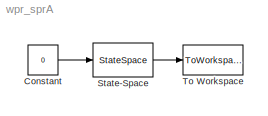
MODEL wpr_sprA
KIND model
BLOCK [Constant] Constant
  SID = 2
  Value = 0
BLOCK [StateSpace] State-Space
  A = [0 1 ; -k/m 0]
  B = [0 ; 1/m]
  C = [1 0]
  D = 0
  SID = 1
  X0 = [0;v00]
BLOCK [ToWorkspace] To Workspace
  MaxDataPoints = inf
  Ports = [1]
  SID = 4
  SampleTime = -1
  VariableName = wpr_spr
LINE Constant:1 -> State-Space:1
LINE State-Space:1 -> To Workspace:1
